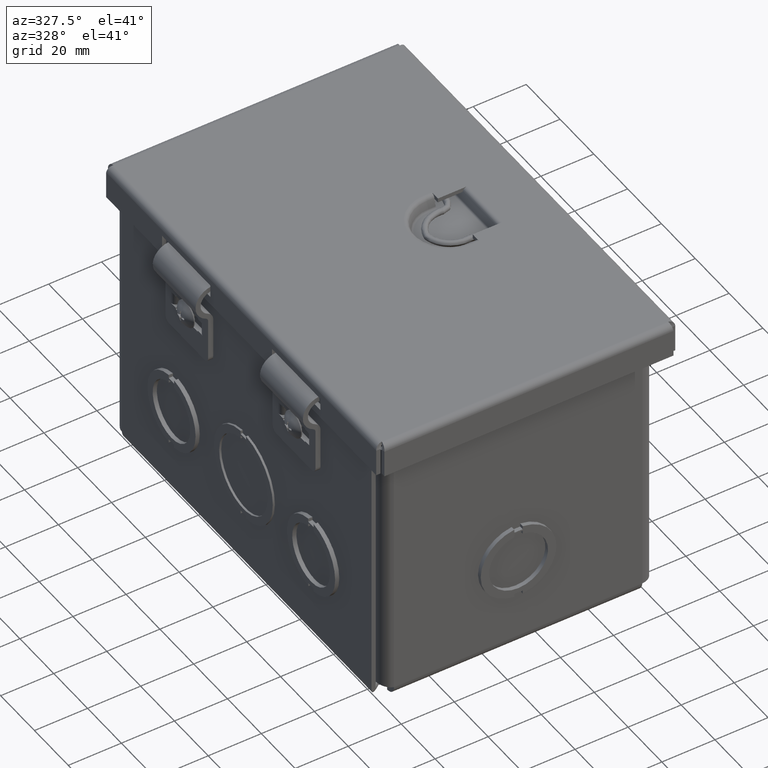
[diagram: clean part render]
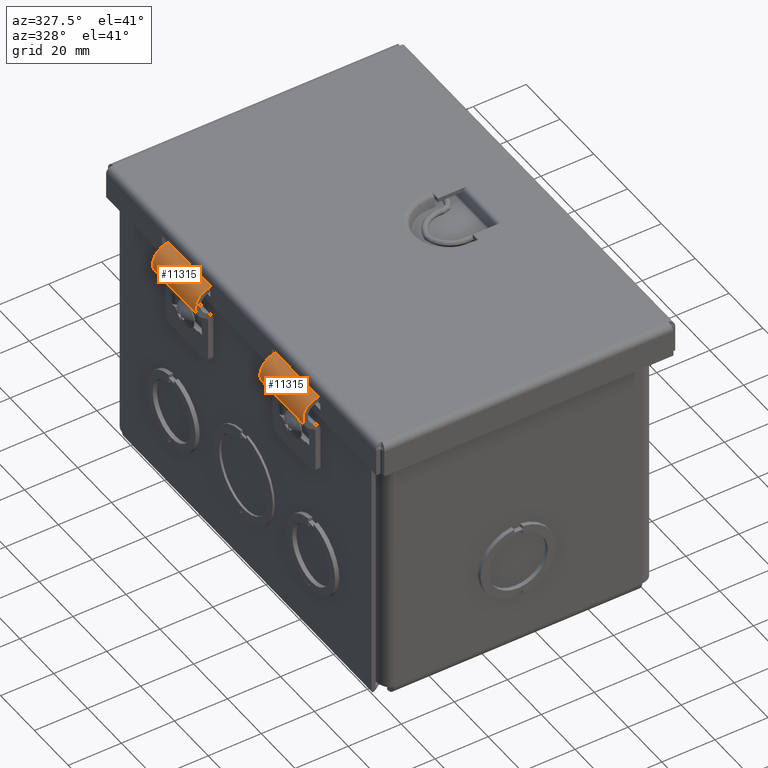
[diagram: same view with one multi-face feature highlighted, each face labeled with its STEP entity id]
A machine part, auxiliary view. The highlighted faces form ONE feature: a constant-radius fillet chain: 2 tangent blend faces with common blend radius 6.6599 mm. The faces share edges in the B-rep.
Their STEP definitions:
[1] entity #11315 (Cylinder):
#409=CYLINDRICAL_SURFACE($,#12128,0.2622);
#1311=LINE($,#18897,#2341);
#1315=LINE($,#18914,#2345);
#2341=VECTOR($,#14525,1.);
#2345=VECTOR($,#14543,1.);
#3525=FACE_OUTER_BOUND($,#4263,.T.);
#4263=EDGE_LOOP($,(#9541,#9542,#9543,#9544));
#4608=CIRCLE($,#12129,0.2622);
#4609=CIRCLE($,#12130,0.2622);
#5415=VERTEX_POINT($,#18893);
#5416=VERTEX_POINT($,#18895);
#5421=VERTEX_POINT($,#18911);
#5422=VERTEX_POINT($,#18913);
#6768=EDGE_CURVE($,#5415,#5416,#1311,.T.);
#6776=EDGE_CURVE($,#5422,#5421,#1315,.T.);
#6778=EDGE_CURVE($,#5421,#5415,#4608,.T.);
#6779=EDGE_CURVE($,#5416,#5422,#4609,.T.);
#9541=ORIENTED_EDGE($,*,*,#6778,.T.);
#9542=ORIENTED_EDGE($,*,*,#6768,.T.);
#9543=ORIENTED_EDGE($,*,*,#6779,.T.);
#9544=ORIENTED_EDGE($,*,*,#6776,.T.);
#11315=ADVANCED_FACE($,(#3525),#409,.T.);
#12128=AXIS2_PLACEMENT_3D($,#18916,#14545,#14546);
#12129=AXIS2_PLACEMENT_3D($,#18917,#14547,#14548);
#12130=AXIS2_PLACEMENT_3D($,#18918,#14549,#14550);
#14525=DIRECTION($,(0.,0.,-1.));
#14543=DIRECTION($,(0.,0.,1.));
#14545=DIRECTION('center_axis',(0.,0.,1.));
#14546=DIRECTION('ref_axis',(1.,0.,0.));
#14547=DIRECTION('center_axis',(0.,0.,-1.));
#14548=DIRECTION('ref_axis',(1.,0.,0.));
#14549=DIRECTION('center_axis',(0.,0.,1.));
#14550=DIRECTION('ref_axis',(1.,0.,0.));
#18893=CARTESIAN_POINT('',(-0.13227951994144,-0.02031598654021,0.5));
#18895=CARTESIAN_POINT('',(-0.13227951994144,-0.02031598654021,-0.5));
#18897=CARTESIAN_POINT($,(-0.13227951994144,-0.02031598654021,0.5));
#18911=CARTESIAN_POINT('',(-0.631368924776762,-0.11111137120484,0.5));
#18913=CARTESIAN_POINT('',(-0.631368924776762,-0.11111137120484,-0.5));
#18914=CARTESIAN_POINT($,(-0.631368924776762,-0.11111137120484,-0.5));
#18916=CARTESIAN_POINT('Origin',(-0.369931075223239,-0.131088628795158,
0.));
#18917=CARTESIAN_POINT('Origin',(-0.369931075223239,-0.131088628795158,
0.5));
#18918=CARTESIAN_POINT('Origin',(-0.369931075223239,-0.131088628795158,
-0.5));
[2] entity #11315 (Cylinder):
#409=CYLINDRICAL_SURFACE($,#12128,0.2622);
#1311=LINE($,#18897,#2341);
#1315=LINE($,#18914,#2345);
#2341=VECTOR($,#14525,1.);
#2345=VECTOR($,#14543,1.);
#3525=FACE_OUTER_BOUND($,#4263,.T.);
#4263=EDGE_LOOP($,(#9541,#9542,#9543,#9544));
#4608=CIRCLE($,#12129,0.2622);
#4609=CIRCLE($,#12130,0.2622);
#5415=VERTEX_POINT($,#18893);
#5416=VERTEX_POINT($,#18895);
#5421=VERTEX_POINT($,#18911);
#5422=VERTEX_POINT($,#18913);
#6768=EDGE_CURVE($,#5415,#5416,#1311,.T.);
#6776=EDGE_CURVE($,#5422,#5421,#1315,.T.);
#6778=EDGE_CURVE($,#5421,#5415,#4608,.T.);
#6779=EDGE_CURVE($,#5416,#5422,#4609,.T.);
#9541=ORIENTED_EDGE($,*,*,#6778,.T.);
#9542=ORIENTED_EDGE($,*,*,#6768,.T.);
#9543=ORIENTED_EDGE($,*,*,#6779,.T.);
#9544=ORIENTED_EDGE($,*,*,#6776,.T.);
#11315=ADVANCED_FACE($,(#3525),#409,.T.);
#12128=AXIS2_PLACEMENT_3D($,#18916,#14545,#14546);
#12129=AXIS2_PLACEMENT_3D($,#18917,#14547,#14548);
#12130=AXIS2_PLACEMENT_3D($,#18918,#14549,#14550);
#14525=DIRECTION($,(0.,0.,-1.));
#14543=DIRECTION($,(0.,0.,1.));
#14545=DIRECTION('center_axis',(0.,0.,1.));
#14546=DIRECTION('ref_axis',(1.,0.,0.));
#14547=DIRECTION('center_axis',(0.,0.,-1.));
#14548=DIRECTION('ref_axis',(1.,0.,0.));
#14549=DIRECTION('center_axis',(0.,0.,1.));
#14550=DIRECTION('ref_axis',(1.,0.,0.));
#18893=CARTESIAN_POINT('',(-0.13227951994144,-0.02031598654021,0.5));
#18895=CARTESIAN_POINT('',(-0.13227951994144,-0.02031598654021,-0.5));
#18897=CARTESIAN_POINT($,(-0.13227951994144,-0.02031598654021,0.5));
#18911=CARTESIAN_POINT('',(-0.631368924776762,-0.11111137120484,0.5));
#18913=CARTESIAN_POINT('',(-0.631368924776762,-0.11111137120484,-0.5));
#18914=CARTESIAN_POINT($,(-0.631368924776762,-0.11111137120484,-0.5));
#18916=CARTESIAN_POINT('Origin',(-0.369931075223239,-0.131088628795158,
0.));
#18917=CARTESIAN_POINT('Origin',(-0.369931075223239,-0.131088628795158,
0.5));
#18918=CARTESIAN_POINT('Origin',(-0.369931075223239,-0.131088628795158,
-0.5));